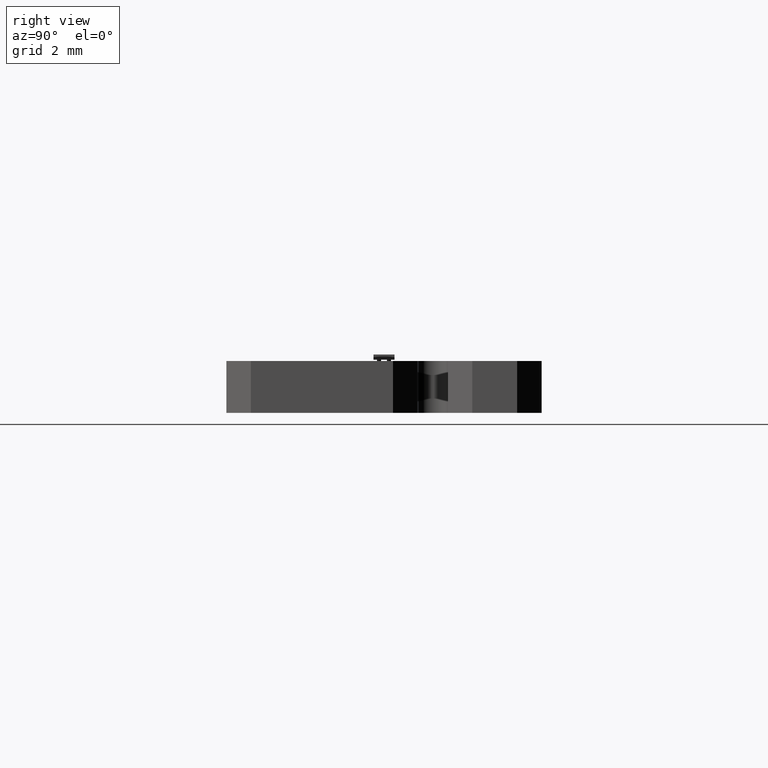
[diagram: clean part render]
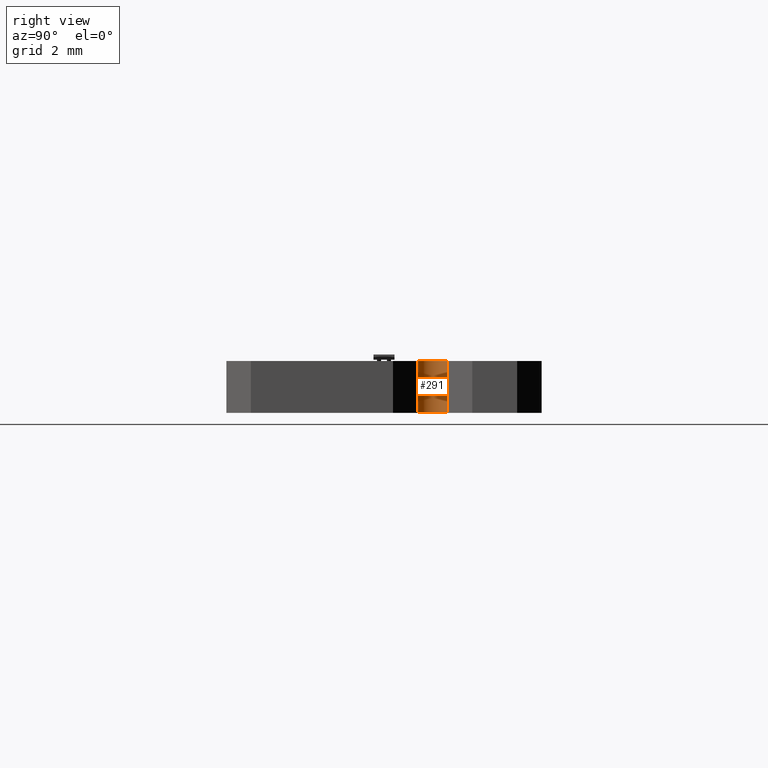
[diagram: same view with one face highlighted and labeled with its STEP entity id]
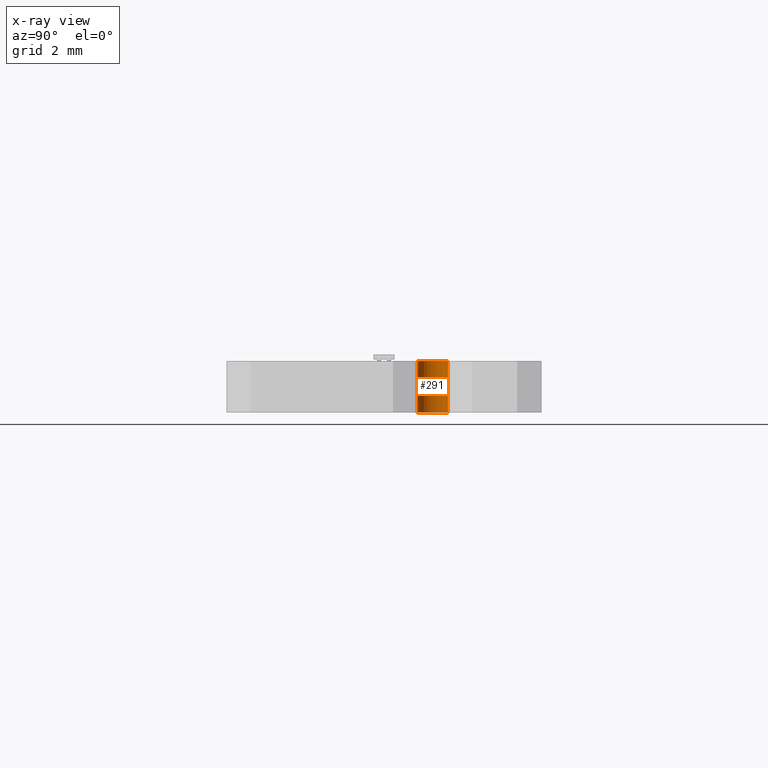
[diagram: x-ray of the same camera — body ghosted, the highlighted face saturated]
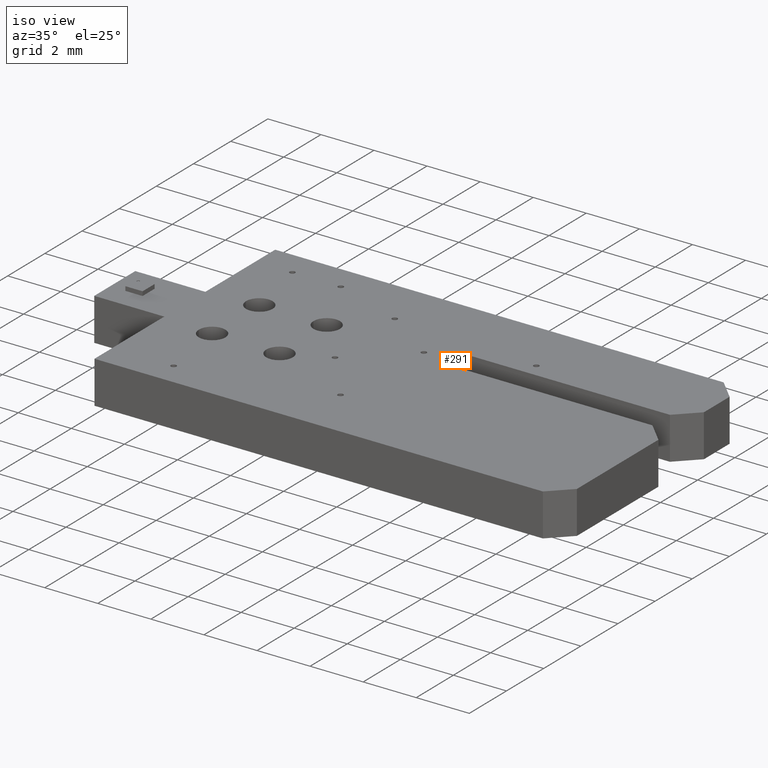
[diagram: same view with one face highlighted and labeled with its STEP entity id]
A machine part, right view. The second image highlights one B-rep face of the part: STEP entity #291.
The next image is the same camera in x-ray: the body ghosted, the highlighted face saturated — about 0% of this face is hidden behind the body in this view.
A second angle (iso view) of the same face is appended — the face is thin or edge-on in the first view.
In plain terms, the highlighted cylindrical surface (edge-blend (fillet) strip) has radius 0.4699 mm, axis along (-0, -0, -1).
Its self-contained STEP definition (entity closure, byte-faithful):
#266 = VERTEX_POINT('',#267);
#267 = CARTESIAN_POINT('',(13.309626619253,1.971043942088,1.600025400051
    ));
#273 = EDGE_CURVE('',#274,#266,#276,.T.);
#274 = VERTEX_POINT('',#275);
#275 = CARTESIAN_POINT('',(13.309626619253,1.971043942088,0.));
#276 = LINE('',#277,#278);
#277 = CARTESIAN_POINT('',(13.309626619253,1.971043942088,0.));
#278 = VECTOR('',#279,1.);
#279 = DIRECTION('',(0.,0.,1.));
#291 = ADVANCED_FACE('',(#292),#319,.F.);
#292 = FACE_BOUND('',#293,.T.);
#293 = EDGE_LOOP('',(#294,#295,#304,#312));
#294 = ORIENTED_EDGE('',*,*,#273,.T.);
#295 = ORIENTED_EDGE('',*,*,#296,.T.);
#296 = EDGE_CURVE('',#266,#297,#299,.T.);
#297 = VERTEX_POINT('',#298);
#298 = CARTESIAN_POINT('',(13.309626619253,1.031242062484,1.600025400051
    ));
#299 = CIRCLE('',#300,0.469900939802);
#300 = AXIS2_PLACEMENT_3D('',#301,#302,#303);
#301 = CARTESIAN_POINT('',(13.309626619253,1.501143002286,1.600025400051
    ));
#302 = DIRECTION('',(0.,0.,1.));
#303 = DIRECTION('',(-1.110223024625E-16,1.,0.));
#304 = ORIENTED_EDGE('',*,*,#305,.F.);
#305 = EDGE_CURVE('',#306,#297,#308,.T.);
#306 = VERTEX_POINT('',#307);
#307 = CARTESIAN_POINT('',(13.309626619253,1.031242062484,0.));
#308 = LINE('',#309,#310);
#309 = CARTESIAN_POINT('',(13.309626619253,1.031242062484,0.));
#310 = VECTOR('',#311,1.);
#311 = DIRECTION('',(0.,0.,1.));
#312 = ORIENTED_EDGE('',*,*,#313,.F.);
#313 = EDGE_CURVE('',#274,#306,#314,.T.);
#314 = CIRCLE('',#315,0.469900939802);
#315 = AXIS2_PLACEMENT_3D('',#316,#317,#318);
#316 = CARTESIAN_POINT('',(13.309626619253,1.501143002286,0.));
#317 = DIRECTION('',(0.,0.,1.));
#318 = DIRECTION('',(-1.110223024625E-16,1.,0.));
#319 = CYLINDRICAL_SURFACE('',#320,0.469900939802);
#320 = AXIS2_PLACEMENT_3D('',#321,#322,#323);
#321 = CARTESIAN_POINT('',(13.309626619253,1.501143002286,0.));
#322 = DIRECTION('',(-0.,-0.,-1.));
#323 = DIRECTION('',(-1.110223024625E-16,1.,0.));